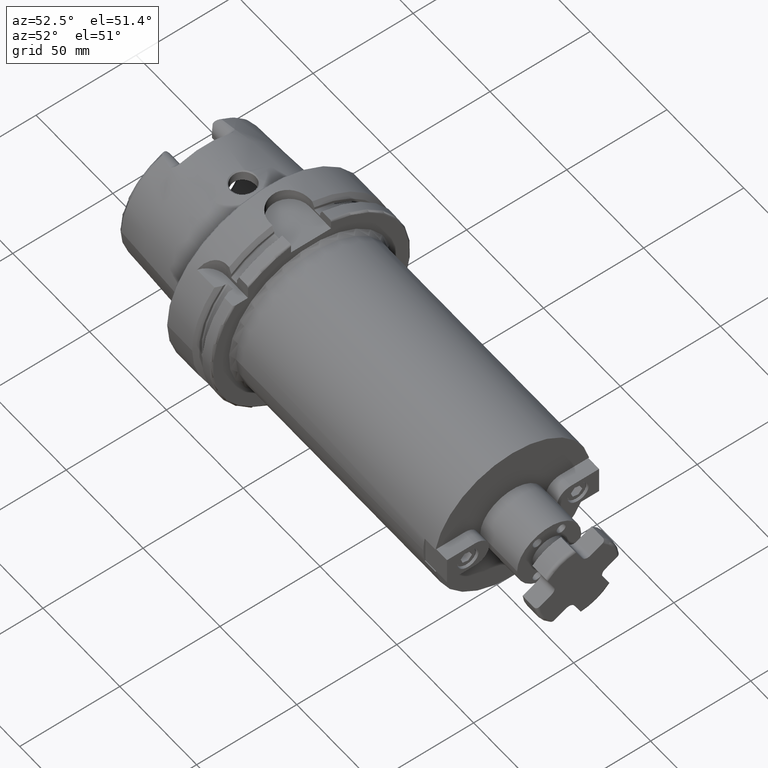
[diagram: clean part render]
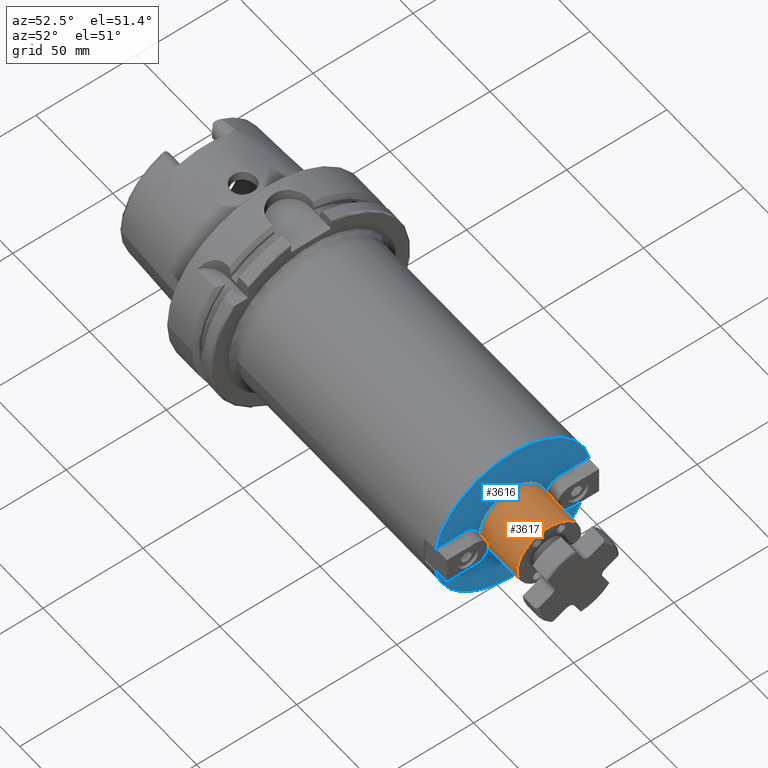
[diagram: same view with the hole feature highlighted: cylindrical wall and planar end face, labeled with their STEP entity ids]
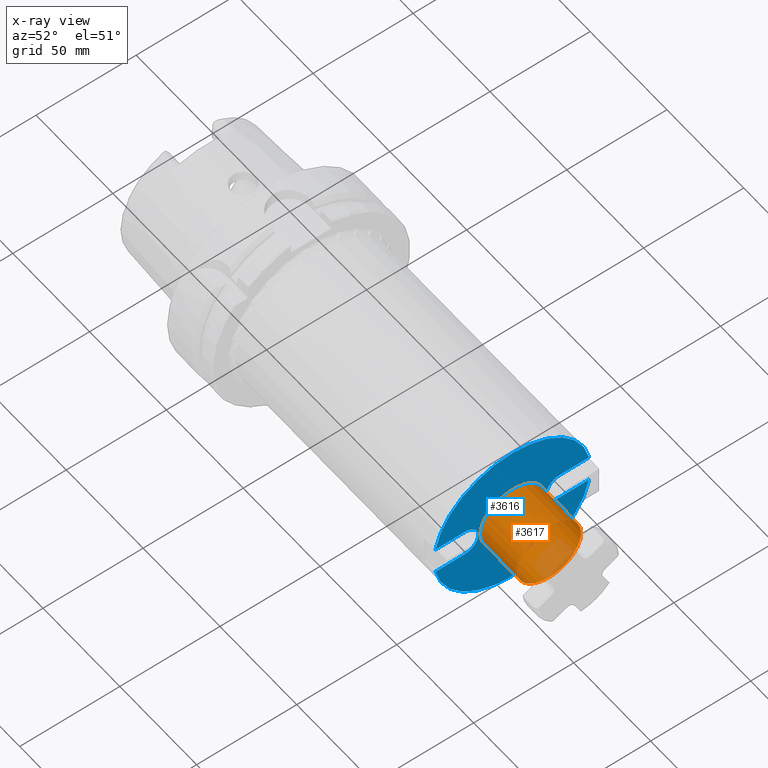
[diagram: x-ray of the same camera — body ghosted, the hole faces saturated]
A machine part, auxiliary view. The highlighted faces form one hole feature of diameter 32 mm: the cylindrical wall (entity #3617, orange) and its adjacent planar end face (entity #3616, blue) — they share a circular edge in the B-rep.
The next image is the same camera in x-ray (body ghosted, the hole faces saturated) — the bore reads through the body.
Wall:
#798=CYLINDRICAL_SURFACE('',#3995,16.);
#871=FACE_OUTER_BOUND('',#1058,.T.);
#1058=EDGE_LOOP('',(#2755,#2756,#2757,#2758));
#1273=LINE('',#5692,#1465);
#1465=VECTOR('',#4571,16.);
#1650=CIRCLE('',#3994,16.);
#1651=CIRCLE('',#3996,16.);
#1897=VERTEX_POINT('',#5687);
#1898=VERTEX_POINT('',#5690);
#2227=EDGE_CURVE('',#1897,#1897,#1650,.T.);
#2228=EDGE_CURVE('',#1898,#1898,#1651,.T.);
#2229=EDGE_CURVE('',#1898,#1897,#1273,.T.);
#2755=ORIENTED_EDGE('',*,*,#2228,.F.);
#2756=ORIENTED_EDGE('',*,*,#2229,.T.);
#2757=ORIENTED_EDGE('',*,*,#2227,.T.);
#2758=ORIENTED_EDGE('',*,*,#2229,.F.);
#3617=ADVANCED_FACE('',(#871),#798,.T.);
#3994=AXIS2_PLACEMENT_3D('',#5688,#4565,#4566);
#3995=AXIS2_PLACEMENT_3D('',#5689,#4567,#4568);
#3996=AXIS2_PLACEMENT_3D('',#5691,#4569,#4570);
#4565=DIRECTION('center_axis',(1.,0.,0.));
#4566=DIRECTION('ref_axis',(0.,0.,-1.));
#4567=DIRECTION('center_axis',(1.,0.,0.));
#4568=DIRECTION('ref_axis',(0.,1.,0.));
#4569=DIRECTION('center_axis',(1.,0.,0.));
#4570=DIRECTION('ref_axis',(0.,0.,-1.));
#4571=DIRECTION('',(-1.,0.,0.));
#5687=CARTESIAN_POINT('',(160.,-16.,-1.95943487863577E-15));
#5688=CARTESIAN_POINT('Origin',(160.,0.,0.));
#5689=CARTESIAN_POINT('Origin',(172.,0.,0.));
#5690=CARTESIAN_POINT('',(184.,-16.,-1.95943487863577E-15));
#5691=CARTESIAN_POINT('Origin',(184.,0.,0.));
#5692=CARTESIAN_POINT('',(172.,-16.,-1.95943487863577E-15));
End face:
#697=FACE_BOUND('',#1057,.T.);
#724=PLANE('',#3993);
#870=FACE_OUTER_BOUND('',#1056,.T.);
#1056=EDGE_LOOP('',(#2746,#2747,#2748,#2749,#2750,#2751,#2752,#2753));
#1057=EDGE_LOOP('',(#2754));
#1242=LINE('',#5574,#1434);
#1250=LINE('',#5602,#1442);
#1256=LINE('',#5629,#1448);
#1261=LINE('',#5642,#1453);
#1434=VECTOR('',#4448,10.);
#1442=VECTOR('',#4478,10.);
#1448=VECTOR('',#4506,10.);
#1453=VECTOR('',#4521,10.);
#1630=CIRCLE('',#3960,6.99999999999999);
#1633=CIRCLE('',#3965,39.);
#1635=CIRCLE('',#3967,39.);
#1639=CIRCLE('',#3976,6.99999999999999);
#1650=CIRCLE('',#3994,16.);
#1855=VERTEX_POINT('',#5570);
#1857=VERTEX_POINT('',#5573);
#1865=VERTEX_POINT('',#5596);
#1866=VERTEX_POINT('',#5600);
#1869=VERTEX_POINT('',#5609);
#1872=VERTEX_POINT('',#5615);
#1876=VERTEX_POINT('',#5628);
#1879=VERTEX_POINT('',#5638);
#1897=VERTEX_POINT('',#5687);
#2171=EDGE_CURVE('',#1857,#1855,#1242,.T.);
#2182=EDGE_CURVE('',#1865,#1857,#1630,.T.);
#2185=EDGE_CURVE('',#1866,#1865,#1250,.T.);
#2189=EDGE_CURVE('',#1869,#1866,#1633,.T.);
#2193=EDGE_CURVE('',#1855,#1872,#1635,.T.);
#2198=EDGE_CURVE('',#1876,#1869,#1256,.T.);
#2203=EDGE_CURVE('',#1879,#1876,#1639,.T.);
#2205=EDGE_CURVE('',#1872,#1879,#1261,.T.);
#2227=EDGE_CURVE('',#1897,#1897,#1650,.T.);
#2746=ORIENTED_EDGE('',*,*,#2171,.T.);
#2747=ORIENTED_EDGE('',*,*,#2193,.T.);
#2748=ORIENTED_EDGE('',*,*,#2205,.T.);
#2749=ORIENTED_EDGE('',*,*,#2203,.T.);
#2750=ORIENTED_EDGE('',*,*,#2198,.T.);
#2751=ORIENTED_EDGE('',*,*,#2189,.T.);
#2752=ORIENTED_EDGE('',*,*,#2185,.T.);
#2753=ORIENTED_EDGE('',*,*,#2182,.T.);
#2754=ORIENTED_EDGE('',*,*,#2227,.F.);
#3616=ADVANCED_FACE('',(#870,#697),#724,.T.);
#3960=AXIS2_PLACEMENT_3D('',#5597,#4472,#4473);
#3965=AXIS2_PLACEMENT_3D('',#5610,#4486,#4487);
#3967=AXIS2_PLACEMENT_3D('',#5617,#4492,#4493);
#3976=AXIS2_PLACEMENT_3D('',#5639,#4516,#4517);
#3993=AXIS2_PLACEMENT_3D('',#5686,#4563,#4564);
#3994=AXIS2_PLACEMENT_3D('',#5688,#4565,#4566);
#4448=DIRECTION('',(0.,-1.,-3.19415130881346E-16));
#4472=DIRECTION('center_axis',(-1.,0.,0.));
#4473=DIRECTION('ref_axis',(0.,1.14636163394259E-15,-1.));
#4478=DIRECTION('',(0.,1.,-1.22464679914735E-16));
#4486=DIRECTION('center_axis',(1.,0.,0.));
#4487=DIRECTION('ref_axis',(0.,0.,-1.));
#4492=DIRECTION('center_axis',(1.,0.,0.));
#4493=DIRECTION('ref_axis',(0.,0.,-1.));
#4506=DIRECTION('',(0.,1.,4.41879810796082E-16));
#4516=DIRECTION('center_axis',(-1.,0.,0.));
#4517=DIRECTION('ref_axis',(0.,-1.26882631385732E-15,1.));
#4521=DIRECTION('',(0.,-1.,0.));
#4563=DIRECTION('center_axis',(1.,0.,0.));
#4564=DIRECTION('ref_axis',(0.,0.,-1.));
#4565=DIRECTION('center_axis',(1.,0.,0.));
#4566=DIRECTION('ref_axis',(0.,0.,-1.));
#5570=CARTESIAN_POINT('',(160.,-38.3666521865018,-7.));
#5573=CARTESIAN_POINT('',(160.,-23.9,-7.));
#5574=CARTESIAN_POINT('',(160.,-3.94999999999998,-6.99999999999999));
#5596=CARTESIAN_POINT('',(160.,-23.9,7.00000000000001));
#5597=CARTESIAN_POINT('Origin',(160.,-23.9,-1.17581567234061E-14));
#5600=CARTESIAN_POINT('',(160.,-38.3666521865018,7.00000000000001));
#5602=CARTESIAN_POINT('',(160.,-14.,7.));
#5609=CARTESIAN_POINT('',(160.,38.3666521865018,7.00000000000001));
#5610=CARTESIAN_POINT('Origin',(160.,0.,0.));
#5615=CARTESIAN_POINT('',(160.,38.3666521865018,-7.));
#5617=CARTESIAN_POINT('Origin',(160.,0.,0.));
#5628=CARTESIAN_POINT('',(160.,23.9,7.));
#5629=CARTESIAN_POINT('',(160.,19.95,7.));
#5638=CARTESIAN_POINT('',(160.,23.9,-7.));
#5639=CARTESIAN_POINT('Origin',(160.,23.9,1.46850625733682E-14));
#5642=CARTESIAN_POINT('',(160.,30.,-7.));
#5686=CARTESIAN_POINT('Origin',(160.,16.,0.));
#5687=CARTESIAN_POINT('',(160.,-16.,-1.95943487863577E-15));
#5688=CARTESIAN_POINT('Origin',(160.,0.,0.));